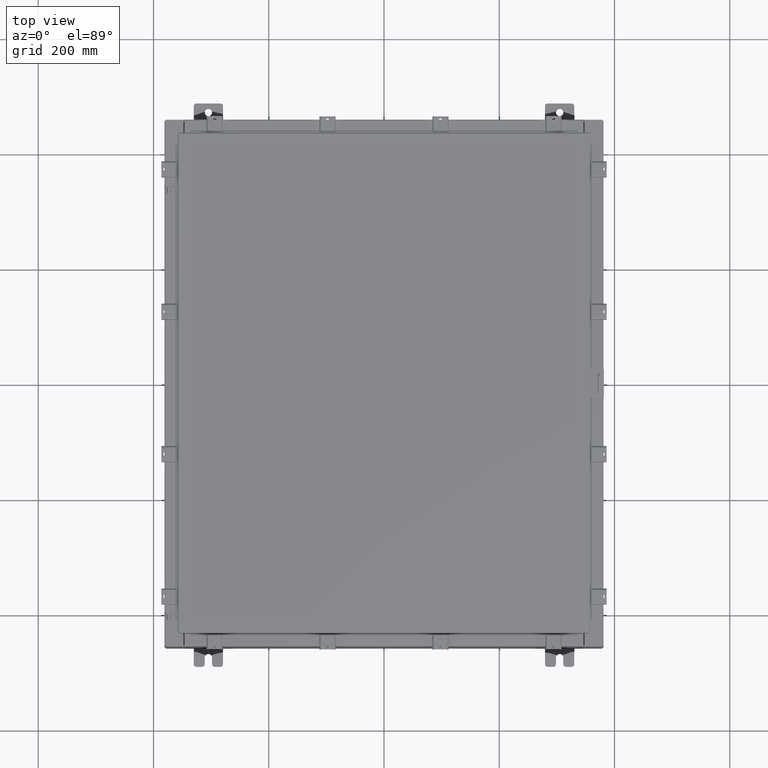
[diagram: clean part render]
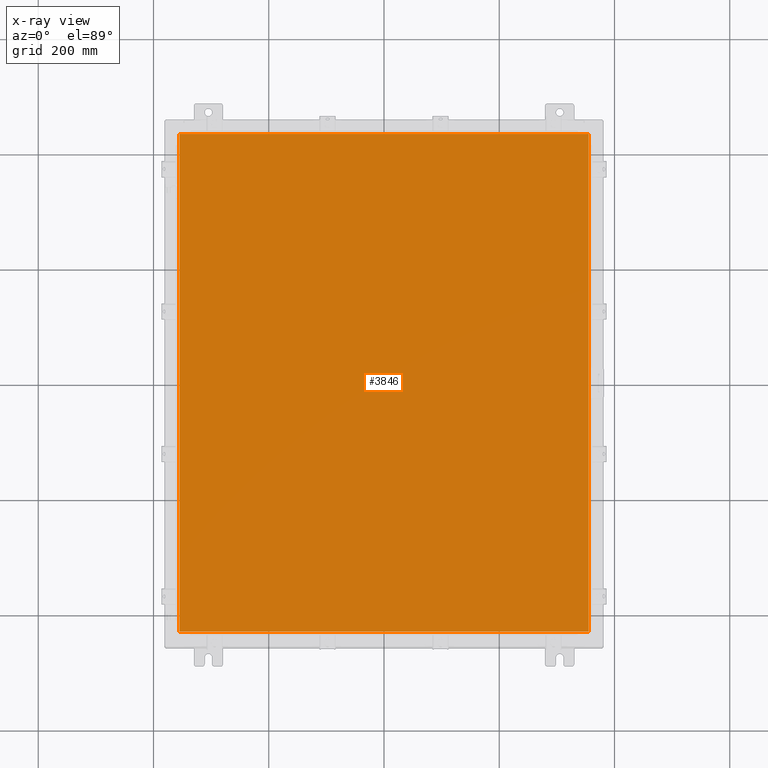
[diagram: x-ray — body ghosted, one internal face saturated and labeled with its STEP entity id]
A machine part, top view, then the same camera in x-ray: the body is ghosted and one INTERNAL B-rep face — a face not visible from any outside direction — is saturated and labeled: STEP entity #3846.
In plain terms, the highlighted planar face has unit normal (0, 0, -1).
Its self-contained STEP definition (entity closure, byte-faithful):
#1062 = LINE ( 'NONE', #15408, #11083 ) ;
#2193 = LINE ( 'NONE', #21739, #22295 ) ;
#2568 = EDGE_CURVE ( 'NONE', #13411, #11333, #2193, .T. ) ;
#3051 = DIRECTION ( 'NONE',  ( 0.0000000000000000000, -1.000000000000000000, 0.0000000000000000000 ) ) ;
#3279 = CARTESIAN_POINT ( 'NONE',  ( 13.99029999999999600, 17.00629999999999600, -0.07469999999999907300 ) ) ;
#3484 = LINE ( 'NONE', #3279, #13508 ) ;
#3846 = ADVANCED_FACE ( 'NONE', ( #10996 ), #23782, .T. ) ;
#3885 = CARTESIAN_POINT ( 'NONE',  ( -13.99030000000000000, 17.00629999999999600, -0.07470000000000015500 ) ) ;
#4251 = VERTEX_POINT ( 'NONE', #15322 ) ;
#4255 = EDGE_CURVE ( 'NONE', #11062, #4251, #22231, .T. ) ;
#5405 = ORIENTED_EDGE ( 'NONE', *, *, #2568, .F. ) ;
#5879 = CARTESIAN_POINT ( 'NONE',  ( 13.99029999999999800, -17.00630000000000300, -0.07470000000000015500 ) ) ;
#7842 = CARTESIAN_POINT ( 'NONE',  ( 13.99029999999999800, -17.00630000000000700, -0.07470000000000015500 ) ) ;
#8517 = AXIS2_PLACEMENT_3D ( 'NONE', #18387, #12522, #10946 ) ;
#8830 = CARTESIAN_POINT ( 'NONE',  ( -13.99030000000000000, -17.00630000000000300, -0.07470000000000015500 ) ) ;
#9032 = ORIENTED_EDGE ( 'NONE', *, *, #16283, .F. ) ;
#10936 = ORIENTED_EDGE ( 'NONE', *, *, #14584, .F. ) ;
#10946 = DIRECTION ( 'NONE',  ( -1.000000000000000000, 0.0000000000000000000, -0.0000000000000000000 ) ) ;
#10996 = FACE_OUTER_BOUND ( 'NONE', #23730, .T. ) ;
#11062 = VERTEX_POINT ( 'NONE', #5879 ) ;
#11083 = VECTOR ( 'NONE', #13589, 39.37007874015748100 ) ;
#11333 = VERTEX_POINT ( 'NONE', #8830 ) ;
#12522 = DIRECTION ( 'NONE',  ( 0.0000000000000000000, 0.0000000000000000000, -1.000000000000000000 ) ) ;
#12766 = DIRECTION ( 'NONE',  ( -1.000000000000000000, -0.0000000000000000000, -0.0000000000000000000 ) ) ;
#13411 = VERTEX_POINT ( 'NONE', #3885 ) ;
#13508 = VECTOR ( 'NONE', #12766, 39.37007874015748100 ) ;
#13589 = DIRECTION ( 'NONE',  ( 1.000000000000000000, -0.0000000000000000000, -0.0000000000000000000 ) ) ;
#14584 = EDGE_CURVE ( 'NONE', #4251, #13411, #3484, .T. ) ;
#15322 = CARTESIAN_POINT ( 'NONE',  ( 13.99029999999999800, 17.00629999999999600, -0.07470000000000015500 ) ) ;
#15408 = CARTESIAN_POINT ( 'NONE',  ( -13.99029999999999800, -17.00630000000000300, -0.07470000000000015500 ) ) ;
#16283 = EDGE_CURVE ( 'NONE', #11333, #11062, #1062, .T. ) ;
#17169 = VECTOR ( 'NONE', #19164, 39.37007874015748100 ) ;
#18387 = CARTESIAN_POINT ( 'NONE',  ( 0.0000000000000000000, 0.0000000000000000000, -0.07470000000000015500 ) ) ;
#19164 = DIRECTION ( 'NONE',  ( 0.0000000000000000000, 1.000000000000000000, 0.0000000000000000000 ) ) ;
#21739 = CARTESIAN_POINT ( 'NONE',  ( -13.99030000000000000, 17.00630000000000000, -0.07470000000000015500 ) ) ;
#22231 = LINE ( 'NONE', #7842, #17169 ) ;
#22295 = VECTOR ( 'NONE', #3051, 39.37007874015748100 ) ;
#23602 = ORIENTED_EDGE ( 'NONE', *, *, #4255, .F. ) ;
#23730 = EDGE_LOOP ( 'NONE', ( #23602, #9032, #5405, #10936 ) ) ;
#23782 = PLANE ( 'NONE',  #8517 ) ;